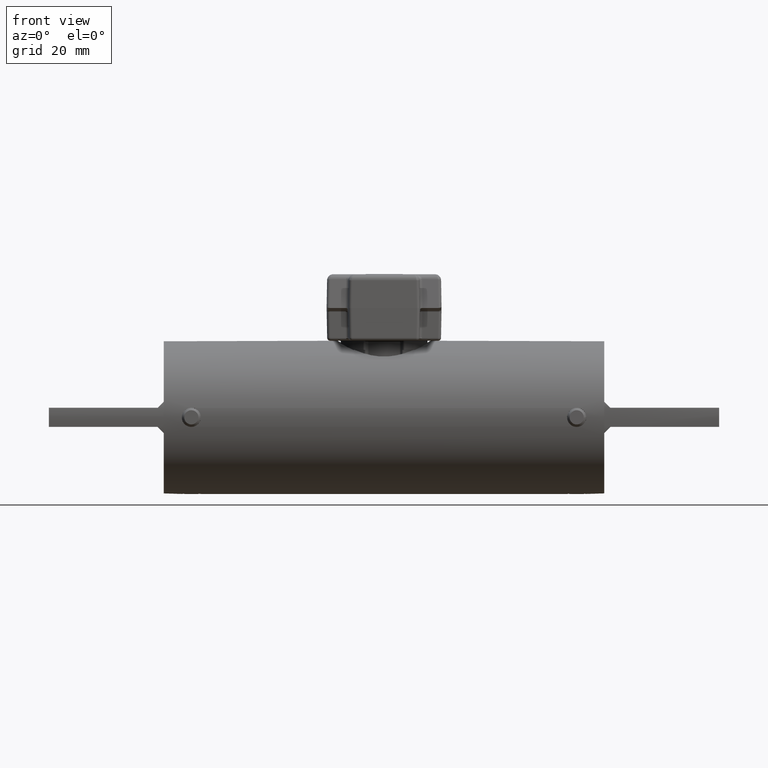
[diagram: clean part render]
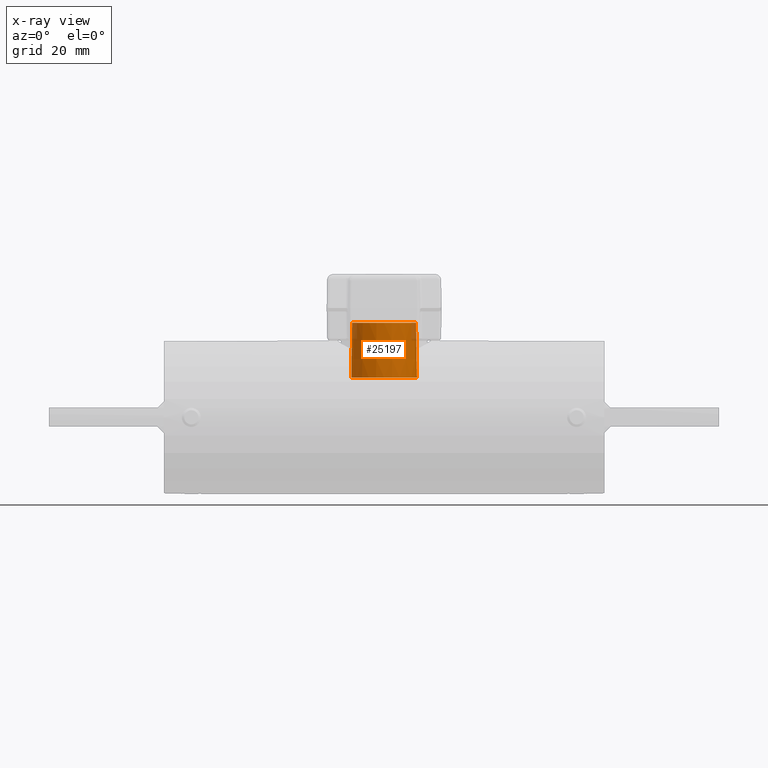
[diagram: x-ray — body ghosted, one internal face saturated and labeled with its STEP entity id]
A machine part, front view, then the same camera in x-ray: the body is ghosted and one INTERNAL B-rep face — a face not visible from any outside direction — is saturated and labeled: STEP entity #25197.
In plain terms, the highlighted conical surface has half-angle 1 deg.
Its self-contained STEP definition (entity closure, byte-faithful):
#1054 = AXIS2_PLACEMENT_3D ( 'NONE', #10513, #32295, #13631 ) ;
#2106 = CARTESIAN_POINT ( 'NONE',  ( 0.0005000000000001566800, 6.115734608992058700E-017, 0.2596509518712542500 ) ) ;
#2214 = EDGE_CURVE ( 'NONE', #37774, #37774, #16426, .T. ) ;
#3927 = FACE_OUTER_BOUND ( 'NONE', #6436, .T. ) ;
#4428 = CONICAL_SURFACE ( 'NONE', #19783, 0.2165500000000000500, 0.01745329251994333400 ) ;
#5312 = DIRECTION ( 'NONE',  ( 2.776318957804446900E-016, 1.000000000000000000, 0.0000000000000000000 ) ) ;
#5313 = EDGE_CURVE ( 'NONE', #11987, #11987, #37811, .T. ) ;
#6102 = CARTESIAN_POINT ( 'NONE',  ( 0.0005000000000000984600, -0.2099808029292398500, 0.6163490481287453600 ) ) ;
#6436 = EDGE_LOOP ( 'NONE', ( #19328 ) ) ;
#9623 = DIRECTION ( 'NONE',  ( 2.775001265282606300E-016, 1.000000000000000000, 0.0000000000000000000 ) ) ;
#10513 = CARTESIAN_POINT ( 'NONE',  ( 0.0005000000000001566800, 4.136001338557641000E-017, 0.6163490481287453600 ) ) ;
#11515 = AXIS2_PLACEMENT_3D ( 'NONE', #2106, #27208, #5312 ) ;
#11987 = VERTEX_POINT ( 'NONE', #6102 ) ;
#12017 = EDGE_LOOP ( 'NONE', ( #28093 ) ) ;
#13631 = DIRECTION ( 'NONE',  ( -2.776057281416204300E-016, -1.000000000000000000, 0.0000000000000000000 ) ) ;
#15776 = DIRECTION ( 'NONE',  ( 1.380506584136770700E-030, 5.550164946788218500E-017, -1.000000000000000000 ) ) ;
#16426 = CIRCLE ( 'NONE', #11515, 0.2162069913591860000 ) ;
#18713 = CARTESIAN_POINT ( 'NONE',  ( 0.0005000000000001566800, 6.224800633238916500E-017, 0.2399999999999999600 ) ) ;
#19328 = ORIENTED_EDGE ( 'NONE', *, *, #2214, .T. ) ;
#19783 = AXIS2_PLACEMENT_3D ( 'NONE', #18713, #15776, #9623 ) ;
#25197 = ADVANCED_FACE ( 'NONE', ( #3927, #35923 ), #4428, .F. ) ;
#27208 = DIRECTION ( 'NONE',  ( 1.380506584136770700E-030, 5.550164946788218500E-017, -1.000000000000000000 ) ) ;
#28093 = ORIENTED_EDGE ( 'NONE', *, *, #5313, .T. ) ;
#32295 = DIRECTION ( 'NONE',  ( -1.380506584136770700E-030, -5.550164946788218500E-017, 1.000000000000000000 ) ) ;
#33922 = CARTESIAN_POINT ( 'NONE',  ( 0.0005000000000002167400, 0.2162069913591860800, 0.2596509518712542500 ) ) ;
#35923 = FACE_BOUND ( 'NONE', #12017, .T. ) ;
#37774 = VERTEX_POINT ( 'NONE', #33922 ) ;
#37811 = CIRCLE ( 'NONE', #1054, 0.2099808029292399000 ) ;